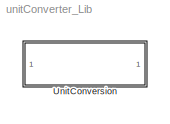
MODEL unitConverter_Lib
KIND library
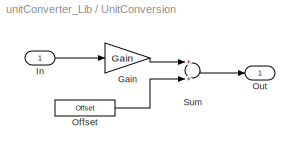
BLOCK [SubSystem] UnitConversion
  FunctionWithSeparateData = off
  MaskCallbackString = ||
  MaskDescription = Conversions available:\n°C_to_K\ndegC_to_degK\nK_to_°C\ndegK_to_degC\nhPa_to_bar\nbar_to_hPa\ng/min_to_kg/s\nkg/s_to_g/min\nkg/h_to_kg/s\nkg/s_to_kg/h\nkm/h_to_m/s\nm/s_to_km/h\nrpm_to_%\n%_to_rpm\ndeg_to_steps\nsteps_to_deg\nsteps_to_bit\nbit_to_steps\n\nPlease remove this block and insert appropriate maps for 'rpm_to_%' and \n'deg_to_steps'
  MaskDisplay = % port_label('input',1,['[', Unit1, ']- [ Gain:', Gain])\n% port_label('output',1, [' ; Offset: ', Offset,'] [', Unit2, ']'])\nfprintf('%s_to_%s \\n [Gain:%s]  \\n [Offset:%s]',Unit1, Unit2, num2str(Gain), num2str(Offset))
  MaskEnableString = on,on,on
  MaskHideContents = off
  MaskIconFrame = on
  MaskIconOpaque = on
  MaskIconRotate = none
  MaskIconUnits = autoscale
  MaskInitialization = switch Selection\n    case '°C_to_K'\n      Offset = 273.15; Gain = 1; Unit1 = '°C'; Unit2 = 'K';\n    case 'degC_to_degK'\n      Offset = 273.15; Gain = 1; Unit1 = '°C'; Unit2 = 'K';\n    case 'K_to_°C'\n      Offset = -273.15; Gain = 1; Unit1 = 'K'; Unit2 = '°C';\n    case 'degK_to_degC'\n      Offset = -273.15; Gain = 1; Unit1 = 'K'; Unit2 = '°C';\n    case 'hPa_to_bar'\n      Offset = 0; Gain ...<+1434ch>
  MaskPortRotate = default
  MaskPromptString = ConversionReqd|Gain|Offset
  MaskStyleString = popup(°C_to_K|degC_to_degK|K_to_°C|degK_to_degC|hPa_to_bar|bar_to_hPa|g/min_to_kg/s|kg/s_to_g/min|kg/h_to_kg/s|kg/s_to_kg/h|km/h_to_m/s|m/s_to_km/h|rpm_to_%|%_to_rpm|deg_to_steps|steps_to_deg|steps_to_bit|bit_to_steps|Others|NoConversionReqd),edit,edit
  MaskToolTipString = on,on,on
  MaskTunableValueString = off,on,on
  MaskType = UnitConversion
  MaskValueString = °C_to_K|0|[]
  MaskVariables = Selection=&1;Gain_User=@2;Offset_User=@3;
  MaskVisibilityString = on,on,on
  MinAlgLoopOccurrences = off
  Opaque = off
  Ports = [1, 1]
  PropExecContextOutsideSubsystem = off
  RTWSystemCode = Auto
  RequestExecContextInheritance = off
  SID = 29
BLOCK [Gain] UnitConversion/Gain
  Gain = Gain
  SID = 31
  Tag = u2_
BLOCK [Inport] UnitConversion/In
  IconDisplay = Port number
  SID = 30
  Tag = inport
BLOCK [Constant] UnitConversion/Offset
  SID = 32
  Tag = offset_
  Value = Offset
BLOCK [Outport] UnitConversion/Out
  IconDisplay = Port number
  SID = 34
  Tag = outport
BLOCK [Sum] UnitConversion/Sum
  Ports = [2, 1]
  SID = 33
LINE UnitConversion/Gain:1 -> UnitConversion/Sum:1
LINE UnitConversion/In:1 -> UnitConversion/Gain:1
LINE UnitConversion/Offset:1 -> UnitConversion/Sum:2
LINE UnitConversion/Sum:1 -> UnitConversion/Out:1
